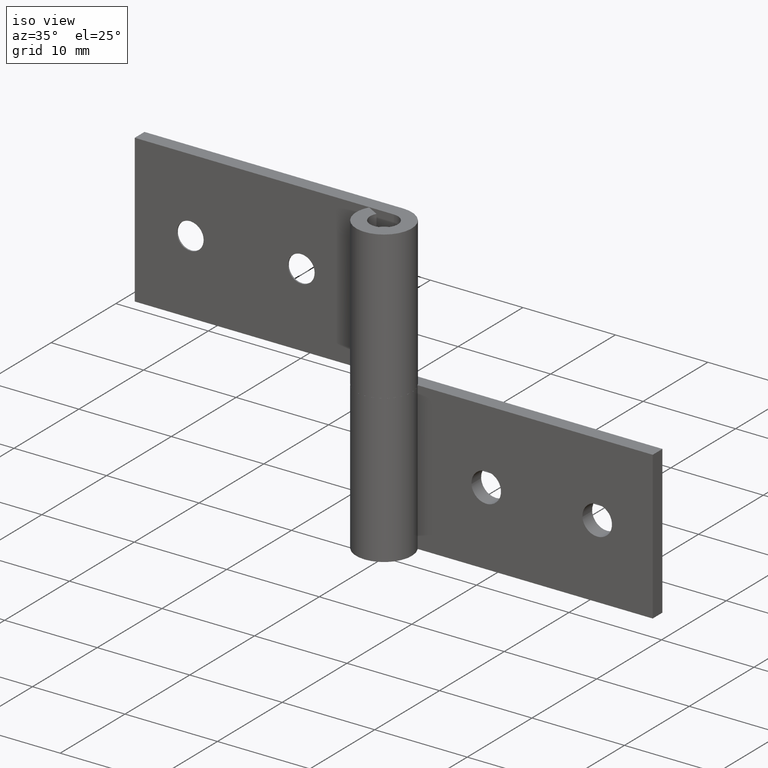
[diagram: clean part render]
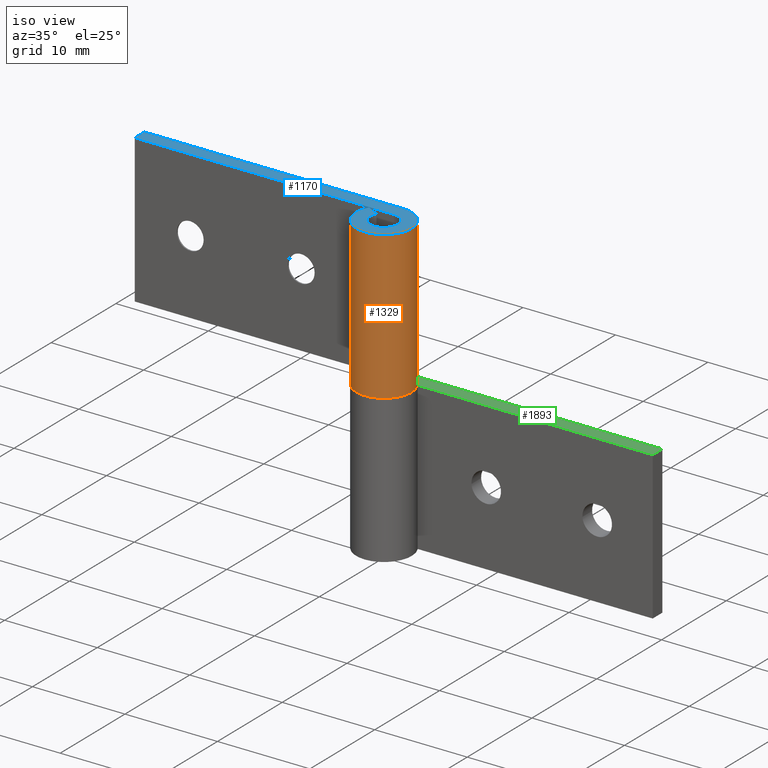
[diagram: same view with three faces highlighted in distinct colors, each labeled with its STEP entity id]
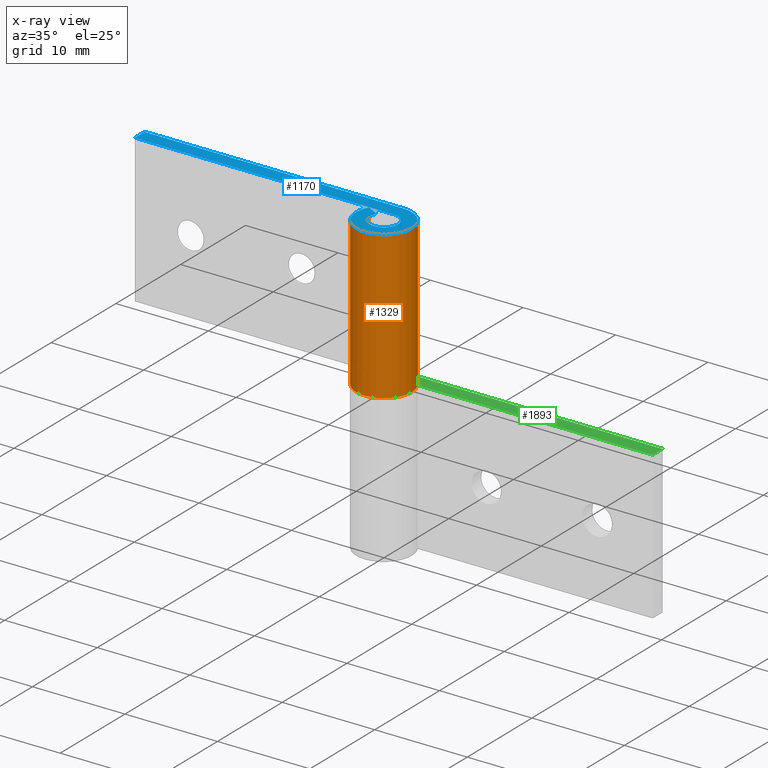
[diagram: x-ray of the same camera — body ghosted, the three highlighted faces saturated]
A machine part, iso view with three faces highlighted in distinct colors.
The next image is the same camera in x-ray (body ghosted, the three faces saturated) — at least one of them is partly hidden behind the body in this view.
Their STEP definitions:

[orange] entity #1329 — the highlighted face is a freeform B-spline surface patch.
#1128=CARTESIAN_POINT('',(-2.626309197333780,1.450000000000000,32.0));
#1129=VERTEX_POINT('',#1128);
#1135=CARTESIAN_POINT('',(-1.148577E-015,3.0,32.0));
#1136=VERTEX_POINT('',#1135);
#1137=CARTESIAN_POINT('',(0.0,3.0,32.0));
#1138=CARTESIAN_POINT('',(2.290598042424808,3.0,32.0));
#1139=CARTESIAN_POINT('',(2.894028888043301,0.790314364775724,32.0));
#1140=CARTESIAN_POINT('',(3.497459733661794,-1.419371270448550,32.0));
#1141=CARTESIAN_POINT('',(1.524795068197693,-2.583602136552761,32.0));
#1142=CARTESIAN_POINT('',(-0.447869597266408,-3.747833002656974,32.0));
#1143=CARTESIAN_POINT('',(-2.090650590886088,-2.151552952364328,32.0));
#1144=CARTESIAN_POINT('',(-3.733431584505768,-0.555272902071681,32.0));
#1145=CARTESIAN_POINT('',(-2.626309197333781,1.449999999999996,32.0));
#1153=(BOUNDED_CURVE()B_SPLINE_CURVE(2,(#1137,#1138,#1139,#1140,#1141,#1142,#1143,#1144,#1145),.UNSPECIFIED.,.F.,.U.)B_SPLINE_CURVE_WITH_KNOTS((3,2,2,2,3),(0.0,0.250000000000000,0.500000000000000,0.750000000000000,1.0),.UNSPECIFIED.)CURVE()GEOMETRIC_REPRESENTATION_ITEM()RATIONAL_B_SPLINE_CURVE((1.0,0.794807562115481,1.0,0.794807562115481,1.0,0.794807562115481,1.0,0.794807562115481,1.0))REPRESENTATION_ITEM(''));
#1154=EDGE_CURVE('',#1136,#1129,#1153,.T.);
#1192=CARTESIAN_POINT('',(-1.148577E-015,3.0,16.0));
#1193=VERTEX_POINT('',#1192);
#1199=CARTESIAN_POINT('',(-2.626309197333780,1.450000000000000,16.0));
#1200=VERTEX_POINT('',#1199);
#1201=CARTESIAN_POINT('',(0.0,3.0,16.0));
#1202=CARTESIAN_POINT('',(2.290598042424808,3.0,16.000000000000004));
#1203=CARTESIAN_POINT('',(2.894028888043301,0.790314364775724,16.0));
#1204=CARTESIAN_POINT('',(3.497459733661794,-1.419371270448550,16.000000000000004));
#1205=CARTESIAN_POINT('',(1.524795068197693,-2.583602136552761,16.0));
#1206=CARTESIAN_POINT('',(-0.447869597266408,-3.747833002656974,16.000000000000004));
#1207=CARTESIAN_POINT('',(-2.090650590886088,-2.151552952364328,16.0));
#1208=CARTESIAN_POINT('',(-3.733431584505768,-0.555272902071681,16.000000000000004));
#1209=CARTESIAN_POINT('',(-2.626309197333781,1.449999999999996,16.0));
#1217=(BOUNDED_CURVE()B_SPLINE_CURVE(2,(#1201,#1202,#1203,#1204,#1205,#1206,#1207,#1208,#1209),.UNSPECIFIED.,.F.,.U.)B_SPLINE_CURVE_WITH_KNOTS((3,2,2,2,3),(0.0,0.250000000000000,0.500000000000000,0.750000000000000,1.0),.UNSPECIFIED.)CURVE()GEOMETRIC_REPRESENTATION_ITEM()RATIONAL_B_SPLINE_CURVE((1.0,0.794807562115481,1.0,0.794807562115481,1.0,0.794807562115481,1.0,0.794807562115481,1.0))REPRESENTATION_ITEM(''));
#1218=EDGE_CURVE('',#1193,#1200,#1217,.T.);
#1275=CARTESIAN_POINT('',(-1.148577E-015,3.0,16.0));
#1276=CARTESIAN_POINT('',(-1.148577E-015,3.0,32.0));
#1277=QUASI_UNIFORM_CURVE('',1,(#1275,#1276),.UNSPECIFIED.,.F.,.U.);
#1278=EDGE_CURVE('',#1193,#1136,#1277,.T.);
#1297=CARTESIAN_POINT('',(-0.083590388003215,2.998835215051582,15.600000000000000));
#1298=CARTESIAN_POINT('',(-0.083590388003215,2.998835215051582,32.409999999999997));
#1299=CARTESIAN_POINT('',(3.597715494687123,3.101448985074057,15.599999999999998));
#1300=CARTESIAN_POINT('',(3.597715494687123,3.101448985074057,32.409999999999989));
#1301=CARTESIAN_POINT('',(2.953784589413351,-0.524553714450863,15.600000000000000));
#1302=CARTESIAN_POINT('',(2.953784589413351,-0.524553714450863,32.409999999999997));
#1303=CARTESIAN_POINT('',(2.309853684139579,-4.150556413975786,15.599999999999998));
#1304=CARTESIAN_POINT('',(2.309853684139579,-4.150556413975786,32.409999999999989));
#1305=CARTESIAN_POINT('',(-1.111023909722692,-2.786687257663569,15.600000000000000));
#1306=CARTESIAN_POINT('',(-1.111023909722692,-2.786687257663569,32.409999999999997));
#1307=CARTESIAN_POINT('',(-4.531901503584964,-1.422818101351353,15.599999999999998));
#1308=CARTESIAN_POINT('',(-4.531901503584964,-1.422818101351353,32.409999999999989));
#1309=CARTESIAN_POINT('',(-2.504447473759407,1.651587978637567,15.600000000000000));
#1310=CARTESIAN_POINT('',(-2.504447473759407,1.651587978637567,32.409999999999997));
#1318=(BOUNDED_SURFACE()B_SPLINE_SURFACE(1,2,((#1297,#1299,#1301,#1303,#1305,#1307,#1309),(#1298,#1300,#1302,#1304,#1306,#1308,#1310)),.UNSPECIFIED.,.F.,.F.,.U.)B_SPLINE_SURFACE_WITH_KNOTS((2,2),(3,2,2,3),(0.0,16.809999999999999),(0.0,5.702297214197751,11.404594428395500,17.106891642593251),.UNSPECIFIED.)GEOMETRIC_REPRESENTATION_ITEM()RATIONAL_B_SPLINE_SURFACE(((1.0,0.631578351302498,1.0,0.631578351302498,1.0,0.631578351302498,1.0),(1.0,0.631578351302498,1.0,0.631578351302498,1.0,0.631578351302498,1.0)))REPRESENTATION_ITEM('')SURFACE());
#1319=ORIENTED_EDGE('',*,*,#1154,.T.);
#1320=CARTESIAN_POINT('',(-2.626309197333780,1.450000000000000,16.0));
#1321=CARTESIAN_POINT('',(-2.626309197333780,1.450000000000000,32.0));
#1322=QUASI_UNIFORM_CURVE('',1,(#1320,#1321),.UNSPECIFIED.,.F.,.U.);
#1323=EDGE_CURVE('',#1200,#1129,#1322,.T.);
#1324=ORIENTED_EDGE('',*,*,#1323,.F.);
#1325=ORIENTED_EDGE('',*,*,#1218,.F.);
#1326=ORIENTED_EDGE('',*,*,#1278,.T.);
#1327=EDGE_LOOP('',(#1319,#1324,#1325,#1326));
#1328=FACE_OUTER_BOUND('',#1327,.T.);
#1329=ADVANCED_FACE('',(#1328),#1318,.T.);

[blue] entity #1170 — the highlighted face is a freeform B-spline surface patch.
#1093=CARTESIAN_POINT('',(-29.548447462887879,-3.299492257821385,32.0));
#1094=CARTESIAN_POINT('',(4.548398704217120,-3.299492257821385,32.0));
#1095=CARTESIAN_POINT('',(-29.548447462887879,3.299690266788844,32.0));
#1096=CARTESIAN_POINT('',(4.548398704217120,3.299690266788844,32.0));
#1097=B_SPLINE_SURFACE_WITH_KNOTS('',1,1,((#1093,#1095),(#1094,#1096)),.UNSPECIFIED.,.F.,.F.,.U.,(2,2),(2,2),(0.0,34.096846167104999),(0.0,6.599182524610230),.UNSPECIFIED.);
#1098=CARTESIAN_POINT('',(-28.0,1.500000000000000,32.0));
#1099=VERTEX_POINT('',#1098);
#1100=CARTESIAN_POINT('',(-2.755364E-016,1.500000000000000,32.0));
#1101=VERTEX_POINT('',#1100);
#1102=CARTESIAN_POINT('',(-28.0,1.500000000000000,32.0));
#1103=CARTESIAN_POINT('',(-2.755364E-016,1.500000000000000,32.0));
#1104=QUASI_UNIFORM_CURVE('',1,(#1102,#1103),.UNSPECIFIED.,.F.,.U.);
#1105=EDGE_CURVE('',#1099,#1101,#1104,.T.);
#1106=ORIENTED_EDGE('',*,*,#1105,.T.);
#1107=CARTESIAN_POINT('',(-1.313154598666890,0.725000000000000,32.0));
#1108=VERTEX_POINT('',#1107);
#1109=CARTESIAN_POINT('',(0.0,1.500000000000000,32.0));
#1110=CARTESIAN_POINT('',(1.145299021212404,1.500000000000001,32.0));
#1111=CARTESIAN_POINT('',(1.447014444021651,0.395157182387862,32.0));
#1112=CARTESIAN_POINT('',(1.748729866830897,-0.709685635224275,32.0));
#1113=CARTESIAN_POINT('',(0.762397534098847,-1.291801068276381,32.0));
#1114=CARTESIAN_POINT('',(-0.223934798633204,-1.873916501328487,32.0));
#1115=CARTESIAN_POINT('',(-1.045325295443044,-1.075776476182164,32.0));
#1116=CARTESIAN_POINT('',(-1.866715792252885,-0.277636451035840,32.0));
#1117=CARTESIAN_POINT('',(-1.313154598666891,0.724999999999998,32.0));
#1125=(BOUNDED_CURVE()B_SPLINE_CURVE(2,(#1109,#1110,#1111,#1112,#1113,#1114,#1115,#1116,#1117),.UNSPECIFIED.,.F.,.U.)B_SPLINE_CURVE_WITH_KNOTS((3,2,2,2,3),(0.0,0.250000000000000,0.500000000000000,0.750000000000000,1.0),.UNSPECIFIED.)CURVE()GEOMETRIC_REPRESENTATION_ITEM()RATIONAL_B_SPLINE_CURVE((1.0,0.794807562115481,1.0,0.794807562115481,1.0,0.794807562115481,1.0,0.794807562115481,1.0))REPRESENTATION_ITEM(''));
#1126=EDGE_CURVE('',#1101,#1108,#1125,.T.);
#1127=ORIENTED_EDGE('',*,*,#1126,.T.);
#1128=CARTESIAN_POINT('',(-2.626309197333780,1.450000000000000,32.0));
#1129=VERTEX_POINT('',#1128);
#1130=CARTESIAN_POINT('',(-1.313154598666890,0.725000000000000,32.0));
#1131=CARTESIAN_POINT('',(-2.626309197333780,1.450000000000000,32.0));
#1132=QUASI_UNIFORM_CURVE('',1,(#1130,#1131),.UNSPECIFIED.,.F.,.U.);
#1133=EDGE_CURVE('',#1108,#1129,#1132,.T.);
#1134=ORIENTED_EDGE('',*,*,#1133,.T.);
#1135=CARTESIAN_POINT('',(-1.148577E-015,3.0,32.0));
#1136=VERTEX_POINT('',#1135);
#1137=CARTESIAN_POINT('',(0.0,3.0,32.0));
#1138=CARTESIAN_POINT('',(2.290598042424808,3.0,32.0));
#1139=CARTESIAN_POINT('',(2.894028888043301,0.790314364775724,32.0));
#1140=CARTESIAN_POINT('',(3.497459733661794,-1.419371270448550,32.0));
#1141=CARTESIAN_POINT('',(1.524795068197693,-2.583602136552761,32.0));
#1142=CARTESIAN_POINT('',(-0.447869597266408,-3.747833002656974,32.0));
#1143=CARTESIAN_POINT('',(-2.090650590886088,-2.151552952364328,32.0));
#1144=CARTESIAN_POINT('',(-3.733431584505768,-0.555272902071681,32.0));
#1145=CARTESIAN_POINT('',(-2.626309197333781,1.449999999999996,32.0));
#1153=(BOUNDED_CURVE()B_SPLINE_CURVE(2,(#1137,#1138,#1139,#1140,#1141,#1142,#1143,#1144,#1145),.UNSPECIFIED.,.F.,.U.)B_SPLINE_CURVE_WITH_KNOTS((3,2,2,2,3),(0.0,0.250000000000000,0.500000000000000,0.750000000000000,1.0),.UNSPECIFIED.)CURVE()GEOMETRIC_REPRESENTATION_ITEM()RATIONAL_B_SPLINE_CURVE((1.0,0.794807562115481,1.0,0.794807562115481,1.0,0.794807562115481,1.0,0.794807562115481,1.0))REPRESENTATION_ITEM(''));
#1154=EDGE_CURVE('',#1136,#1129,#1153,.T.);
#1155=ORIENTED_EDGE('',*,*,#1154,.F.);
#1156=CARTESIAN_POINT('',(-28.0,3.0,32.0));
#1157=VERTEX_POINT('',#1156);
#1158=CARTESIAN_POINT('',(-1.148577E-015,3.0,32.0));
#1159=CARTESIAN_POINT('',(-28.0,3.0,32.0));
#1160=QUASI_UNIFORM_CURVE('',1,(#1158,#1159),.UNSPECIFIED.,.F.,.U.);
#1161=EDGE_CURVE('',#1136,#1157,#1160,.T.);
#1162=ORIENTED_EDGE('',*,*,#1161,.T.);
#1163=CARTESIAN_POINT('',(-28.0,3.0,32.0));
#1164=CARTESIAN_POINT('',(-28.0,1.500000000000000,32.0));
#1165=QUASI_UNIFORM_CURVE('',1,(#1163,#1164),.UNSPECIFIED.,.F.,.U.);
#1166=EDGE_CURVE('',#1157,#1099,#1165,.T.);
#1167=ORIENTED_EDGE('',*,*,#1166,.T.);
#1168=EDGE_LOOP('',(#1106,#1127,#1134,#1155,#1162,#1167));
#1169=FACE_OUTER_BOUND('',#1168,.T.);
#1170=ADVANCED_FACE('',(#1169),#1097,.T.);

[green] entity #1893 — the highlighted face is a freeform B-spline surface patch.
#1816=CARTESIAN_POINT('',(-4.548398241975407,-3.299492229896964,16.0));
#1817=CARTESIAN_POINT('',(29.548454369752811,-3.299492229896964,16.0));
#1818=CARTESIAN_POINT('',(-4.548398241975407,3.299690265460375,16.0));
#1819=CARTESIAN_POINT('',(29.548454369752811,3.299690265460375,16.0));
#1820=B_SPLINE_SURFACE_WITH_KNOTS('',1,1,((#1816,#1818),(#1817,#1819)),.UNSPECIFIED.,.F.,.F.,.U.,(2,2),(2,2),(0.0,34.096852611728217),(0.0,6.599182495357339),.UNSPECIFIED.);
#1821=CARTESIAN_POINT('',(2.626309197333780,1.450000000000000,16.0));
#1822=VERTEX_POINT('',#1821);
#1823=CARTESIAN_POINT('',(0.0,3.0,16.0));
#1824=VERTEX_POINT('',#1823);
#1825=CARTESIAN_POINT('',(2.626309197333780,1.450000000000000,16.0));
#1826=CARTESIAN_POINT('',(3.733431584505770,-0.555272902071675,15.999999999999995));
#1827=CARTESIAN_POINT('',(2.090650590886091,-2.151552952364324,16.0));
#1828=CARTESIAN_POINT('',(0.447869597266413,-3.747833002656972,15.999999999999995));
#1829=CARTESIAN_POINT('',(-1.524795068197689,-2.583602136552764,16.0));
#1830=CARTESIAN_POINT('',(-3.497459733661792,-1.419371270448555,15.999999999999995));
#1831=CARTESIAN_POINT('',(-2.894028888043301,0.790314364775722,16.0));
#1832=CARTESIAN_POINT('',(-2.290598042424809,3.000000000000000,15.999999999999995));
#1833=CARTESIAN_POINT('',(0.0,3.0,16.0));
#1841=(BOUNDED_CURVE()B_SPLINE_CURVE(2,(#1825,#1826,#1827,#1828,#1829,#1830,#1831,#1832,#1833),.UNSPECIFIED.,.F.,.U.)B_SPLINE_CURVE_WITH_KNOTS((3,2,2,2,3),(0.0,0.250000000000000,0.500000000000000,0.750000000000000,1.0),.UNSPECIFIED.)CURVE()GEOMETRIC_REPRESENTATION_ITEM()RATIONAL_B_SPLINE_CURVE((1.0,0.794807562115481,1.0,0.794807562115481,1.0,0.794807562115481,1.0,0.794807562115481,1.0))REPRESENTATION_ITEM(''));
#1842=EDGE_CURVE('',#1822,#1824,#1841,.T.);
#1843=ORIENTED_EDGE('',*,*,#1842,.F.);
#1844=CARTESIAN_POINT('',(1.313154598666890,0.725000000000000,16.0));
#1845=VERTEX_POINT('',#1844);
#1846=CARTESIAN_POINT('',(1.313154598666890,0.725000000000000,16.0));
#1847=CARTESIAN_POINT('',(2.626309197333780,1.450000000000000,16.0));
#1848=QUASI_UNIFORM_CURVE('',1,(#1846,#1847),.UNSPECIFIED.,.F.,.U.);
#1849=EDGE_CURVE('',#1845,#1822,#1848,.T.);
#1850=ORIENTED_EDGE('',*,*,#1849,.F.);
#1851=CARTESIAN_POINT('',(0.0,1.500000000000000,16.0));
#1852=VERTEX_POINT('',#1851);
#1853=CARTESIAN_POINT('',(1.313154598666890,0.725000000000000,16.0));
#1854=CARTESIAN_POINT('',(1.866715792252885,-0.277636451035838,15.999999999999995));
#1855=CARTESIAN_POINT('',(1.045325295443045,-1.075776476182162,16.0));
#1856=CARTESIAN_POINT('',(0.223934798633207,-1.873916501328486,15.999999999999995));
#1857=CARTESIAN_POINT('',(-0.762397534098844,-1.291801068276382,16.0));
#1858=CARTESIAN_POINT('',(-1.748729866830896,-0.709685635224277,15.999999999999995));
#1859=CARTESIAN_POINT('',(-1.447014444021651,0.395157182387861,16.0));
#1860=CARTESIAN_POINT('',(-1.145299021212405,1.500000000000000,15.999999999999995));
#1861=CARTESIAN_POINT('',(0.0,1.500000000000000,16.0));
#1869=(BOUNDED_CURVE()B_SPLINE_CURVE(2,(#1853,#1854,#1855,#1856,#1857,#1858,#1859,#1860,#1861),.UNSPECIFIED.,.F.,.U.)B_SPLINE_CURVE_WITH_KNOTS((3,2,2,2,3),(0.0,0.250000000000000,0.500000000000000,0.750000000000000,1.0),.UNSPECIFIED.)CURVE()GEOMETRIC_REPRESENTATION_ITEM()RATIONAL_B_SPLINE_CURVE((1.0,0.794807562115481,1.0,0.794807562115481,1.0,0.794807562115481,1.0,0.794807562115481,1.0))REPRESENTATION_ITEM(''));
#1870=EDGE_CURVE('',#1845,#1852,#1869,.T.);
#1871=ORIENTED_EDGE('',*,*,#1870,.T.);
#1872=CARTESIAN_POINT('',(28.000008000000001,1.500000000000000,16.0));
#1873=VERTEX_POINT('',#1872);
#1874=CARTESIAN_POINT('',(28.000008000000001,1.500000000000000,16.0));
#1875=CARTESIAN_POINT('',(0.0,1.500000000000000,16.0));
#1876=QUASI_UNIFORM_CURVE('',1,(#1874,#1875),.UNSPECIFIED.,.F.,.U.);
#1877=EDGE_CURVE('',#1873,#1852,#1876,.T.);
#1878=ORIENTED_EDGE('',*,*,#1877,.F.);
#1879=CARTESIAN_POINT('',(28.000008000000001,3.0,16.0));
#1880=VERTEX_POINT('',#1879);
#1881=CARTESIAN_POINT('',(28.000008000000001,3.0,16.0));
#1882=CARTESIAN_POINT('',(28.000008000000001,1.500000000000000,16.0));
#1883=QUASI_UNIFORM_CURVE('',1,(#1881,#1882),.UNSPECIFIED.,.F.,.U.);
#1884=EDGE_CURVE('',#1880,#1873,#1883,.T.);
#1885=ORIENTED_EDGE('',*,*,#1884,.F.);
#1886=CARTESIAN_POINT('',(0.0,3.0,16.0));
#1887=CARTESIAN_POINT('',(28.000008000000001,3.0,16.0));
#1888=QUASI_UNIFORM_CURVE('',1,(#1886,#1887),.UNSPECIFIED.,.F.,.U.);
#1889=EDGE_CURVE('',#1824,#1880,#1888,.T.);
#1890=ORIENTED_EDGE('',*,*,#1889,.F.);
#1891=EDGE_LOOP('',(#1843,#1850,#1871,#1878,#1885,#1890));
#1892=FACE_OUTER_BOUND('',#1891,.T.);
#1893=ADVANCED_FACE('',(#1892),#1820,.T.);